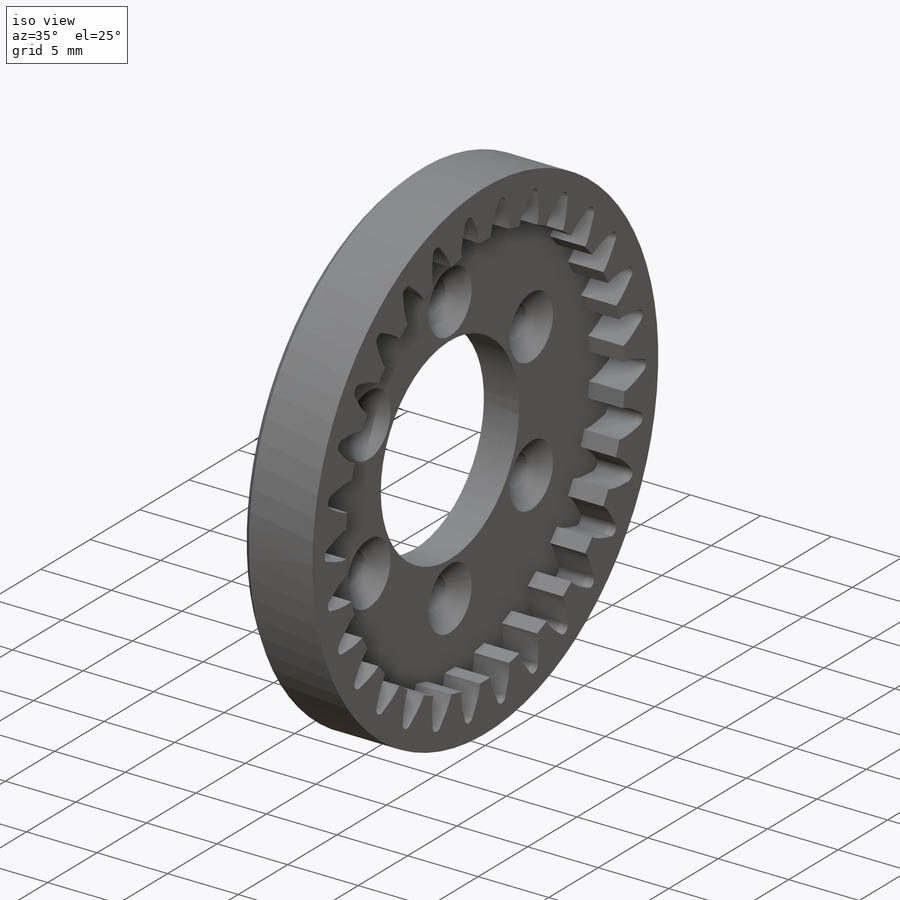
[diagram: iso view]
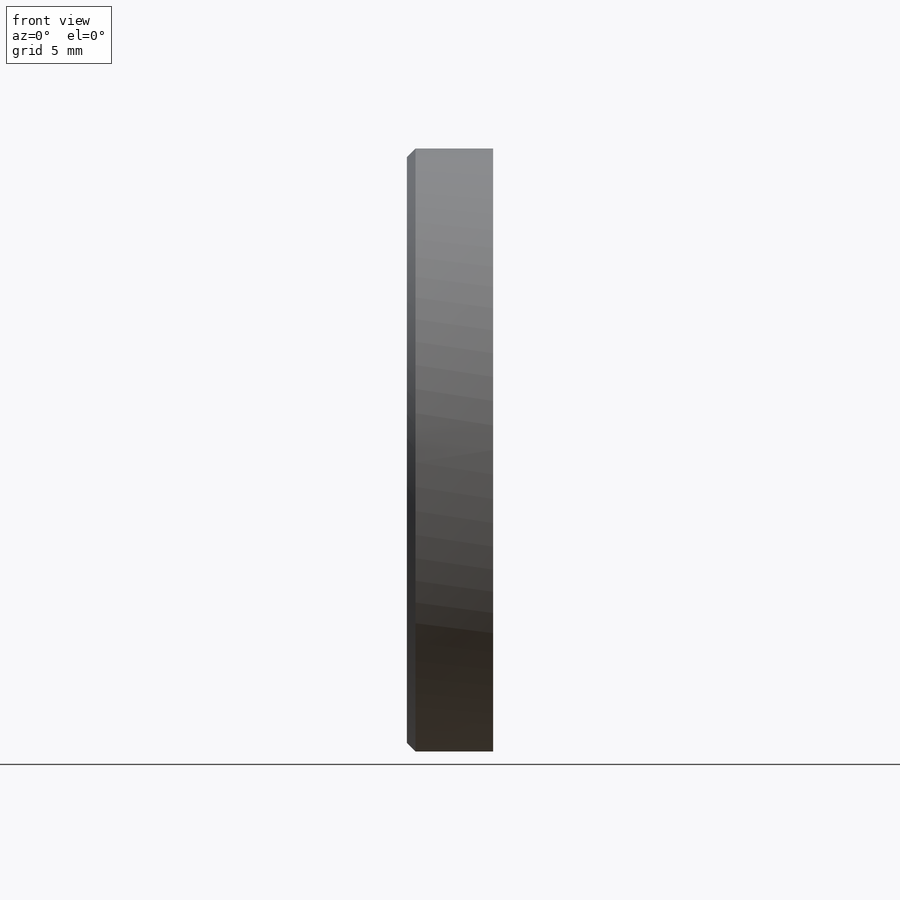
[diagram: front view]
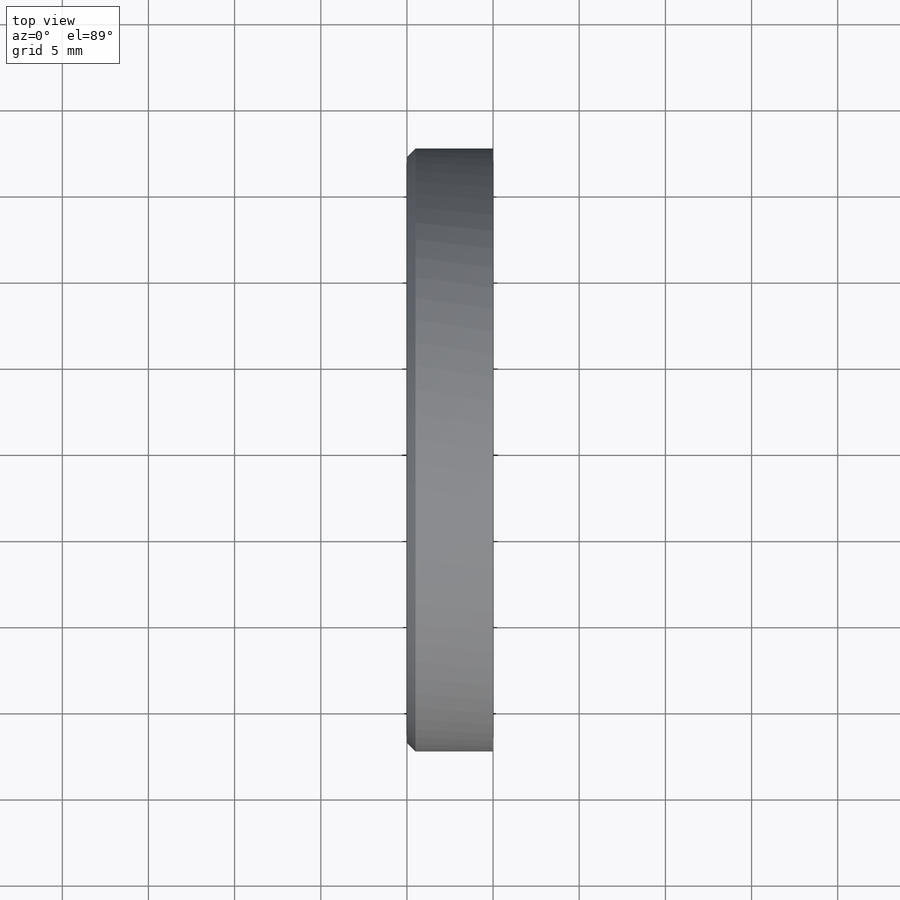
[diagram: top view]
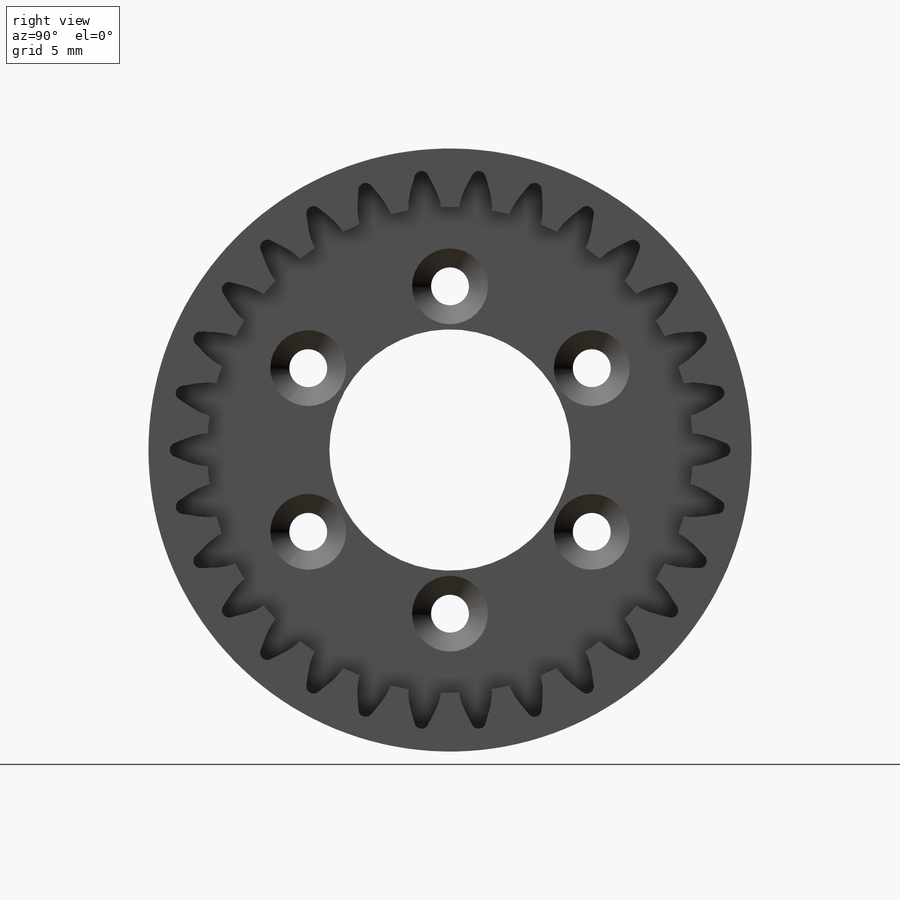
[diagram: right view]
SOLIDWORKS PART (.sldprt)
format: sldprt  version: not decoded by parser v0  size: 505,344 bytes
history: native  units: mm
features: sketch x4, plane x3, pattern_circular x2, material x1, revolve x1, chamfer x1, hole x1, move_body x1, boolean_combine x1, cut_extrude x1 + 1 further entry (+17 scaffold rows collapsed; 5 parser-record rows omitted)
feature tree (39):
  scaffold x17  (default folders/planes/origin — collapsed)
  material  "POM Acetal Copolymer"
  sketch  "Sketch1"  dims[D1=14.0mm D2=35.0mm D3=2.5mm D4=2.5mm D5=34.0mm]
  revolve  "Revolve1"  Angle=360deg
  chamfer  "Chamfer1"  Distance=0.5mm Angle=45deg
  hole  "CSK for M2 Countersunk Flat Head Screw1"  Diameter=2.2mm Depth=2.5mm
  sketch  "Sketch5"  dims[D1=19.0mm]
  sketch  "Sketch4"  dims[hole-wizard template sketch: 55 standard entries collapsed; hole parameters kept: c17.Thru Hole Depth=2.5mm c17.Near C'Sink Dia.=4.4mm c17.D4=~3.666174mm c17.Near C'Sink Angle=90.0deg]
  pattern_circular  "CirPattern1"  Count=6 Angle=360deg
  plane  "Front-temp_Ring_Gear_Fixed01"
  plane  "Top-temp_Ring_Gear_Fixed01"
  plane  "Right-temp_Ring_Gear_Fixed01"
  "temp_Ring_Gear_Fixed01"
  parser-record x5  (decoder bookkeeping rows leaked as tree rows — omitted from the tree; the rows remain in map.json)
  move_body  "Body-Move/Copy4"
  boolean_combine  "Combine1"
  sketch  "Sketch6"  dims[D1=0.85mm]
  cut_extrude  "Cut-Extrude1"  [1 undecoded]
  pattern_circular  "CirPattern2"  Count=30 Angle=360deg
decode coverage: 9 of 12 modeling features carry decoded parameters; 1 rows unclassified (native names shown)
note: ~ marks probable driven/reference dimensions
note: 1 parameter value undecoded
note: suppression state not decoded; provenance and decode notes live in map.json
